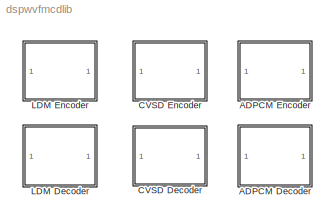
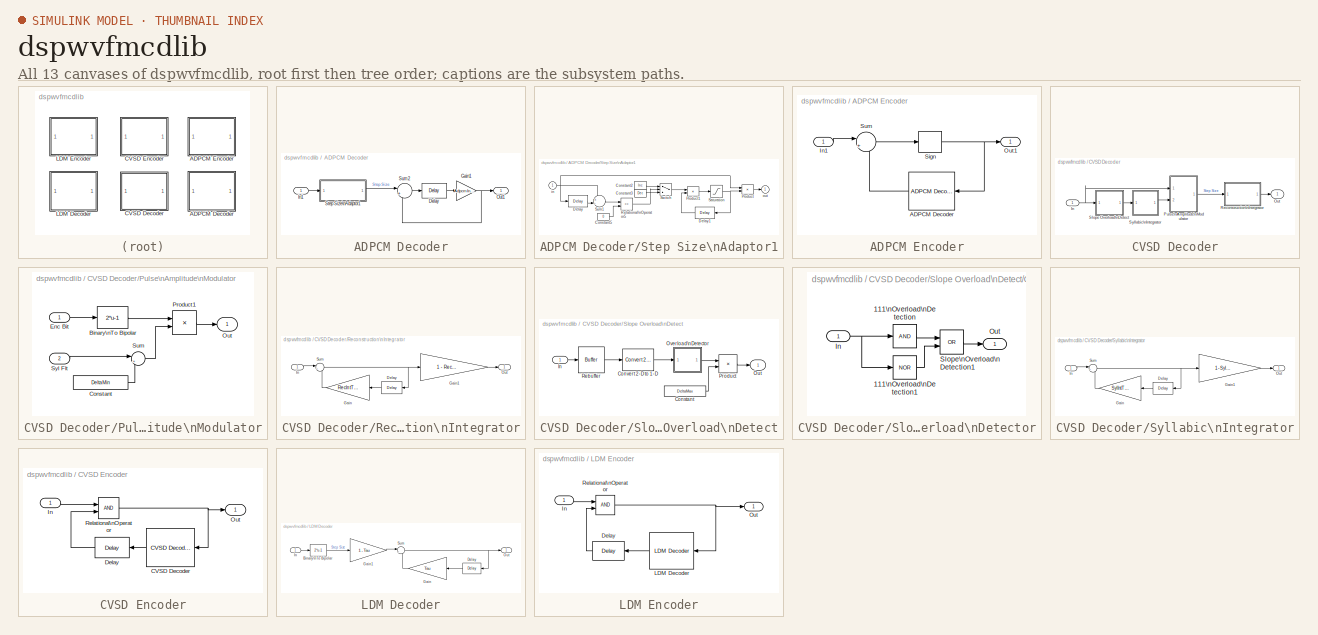
[diagram: thumbnail index - all 13 canvases of the model, root first then tree order]
MODEL dspwvfmcdlib
KIND library
BLOCK [SubSystem] ADPCM Decoder
  MaskCallbackString = |||||
  MaskDisplay = disp('ADPCM\\nDecoder')
  MaskEnableString = on,on,on,on,on,on
  MaskIconFrame = on
  MaskIconOpaque = on
  MaskIconRotate = none
  MaskIconUnits = autoscale
  MaskPromptString = Step-size attenuation|Step-size gain|Maximum step size|Minimum step size|Initial step size|Integrator time constant
  MaskStyleString = edit,edit,edit,edit,edit,edit
  MaskToolTipString = on,on,on,on,on,on
  MaskTunableValueString = on,on,on,on,on,on
  MaskType = ADPCM Decoder
  MaskValueString = .5|2|0.5|0.01|0.1|0.99
  MaskVarAliasString = ,,,,,
  MaskVariables = StepAttn=@1;StepGain=@2;StepMax=@3;StepMin=@4;StepInit=@5;AdpcmIntTau=@6;
  MaskVisibilityString = on,on,on,on,on,on
  Ports = [1, 1]
  TreatAsAtomicUnit = off
BLOCK [Reference] ADPCM Decoder/Delay  REF=dspsigops/Delay
  Ports = [1, 1]
  SourceBlock = dspsigops/Delay
  SourceType = Delay
  delay = 1
  dif_ic_for_ch = off
  dif_ic_for_dly = off
  dly_unit = Samples
  ic = 0
  ic_detail = on
  reset_popup = None
BLOCK [Gain] ADPCM Decoder/Gain1
  Gain = AdpcmIntTau
BLOCK [Inport] ADPCM Decoder/In1
BLOCK [Outport] ADPCM Decoder/Out1
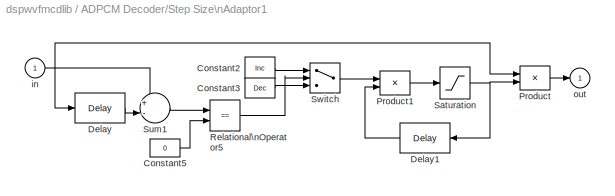
BLOCK [SubSystem] ADPCM Decoder/Step Size\nAdaptor1
  MaskCallbackString = ||||
  MaskDescription = Step-size logic
  MaskDisplay = disp('Step Size\\nAdaptation')
  MaskEnableString = on,on,on,on,on
  MaskIconFrame = on
  MaskIconOpaque = on
  MaskIconRotate = none
  MaskIconUnits = autoscale
  MaskPromptString = Step-size attenuation factor:|Step-size gain factor:|Maximum step size:|Minimum step size:|Initial step size:
  MaskStyleString = edit,edit,edit,edit,edit
  MaskToolTipString = on,on,on,on,on
  MaskTunableValueString = on,on,on,on,on
  MaskType = Step-size adaptation
  MaskValueString = StepAttn|StepGain|StepMax|StepMin|StepInit
  MaskVarAliasString = ,,,,
  MaskVariables = Dec=@1;Inc=@2;MaxStep=@3;MinStep=@4;InitStep=@5;
  MaskVisibilityString = on,on,on,on,on
  Ports = [1, 1]
  ShowPortLabels = off
  TreatAsAtomicUnit = off
BLOCK [Constant] ADPCM Decoder/Step Size\nAdaptor1/Constant2
  Value = Inc
BLOCK [Constant] ADPCM Decoder/Step Size\nAdaptor1/Constant3
  Value = Dec
BLOCK [Constant] ADPCM Decoder/Step Size\nAdaptor1/Constant5
  Value = 0
BLOCK [Reference] ADPCM Decoder/Step Size\nAdaptor1/Delay  REF=dspsigops/Delay
  Ports = [1, 1]
  SourceBlock = dspsigops/Delay
  SourceType = Delay
  delay = 1
  dif_ic_for_ch = off
  dif_ic_for_dly = off
  dly_unit = Samples
  ic = 0
  ic_detail = on
  reset_popup = None
BLOCK [Reference] ADPCM Decoder/Step Size\nAdaptor1/Delay1  REF=dspsigops/Delay
  Ports = [1, 1]
  SourceBlock = dspsigops/Delay
  SourceType = Delay
  delay = 1
  dif_ic_for_ch = off
  dif_ic_for_dly = off
  dly_unit = Samples
  ic = InitStep
  ic_detail = on
  reset_popup = None
BLOCK [Product] ADPCM Decoder/Step Size\nAdaptor1/Product
  Ports = [2, 1]
BLOCK [Product] ADPCM Decoder/Step Size\nAdaptor1/Product1
  Ports = [2, 1]
BLOCK [RelationalOperator] ADPCM Decoder/Step Size\nAdaptor1/Relational\nOperator5
  Operator = ==
BLOCK [Saturate] ADPCM Decoder/Step Size\nAdaptor1/Saturation
  LowerLimit = MinStep
  UpperLimit = MaxStep
BLOCK [Sum] ADPCM Decoder/Step Size\nAdaptor1/Sum1
  IconShape = round
  Inputs = +-|
  Ports = [2, 1]
BLOCK [Switch] ADPCM Decoder/Step Size\nAdaptor1/Switch
  Threshold = 1
BLOCK [Inport] ADPCM Decoder/Step Size\nAdaptor1/in
BLOCK [Outport] ADPCM Decoder/Step Size\nAdaptor1/out
  InitialOutput = 0
BLOCK [Sum] ADPCM Decoder/Sum2
  IconShape = round
  Inputs = |++
  Ports = [2, 1]
BLOCK [SubSystem] ADPCM Encoder
  MaskCallbackString = |||||
  MaskDisplay = disp('ADPCM\\nEncoder')
  MaskEnableString = on,on,on,on,on,on
  MaskIconFrame = on
  MaskIconOpaque = on
  MaskIconRotate = none
  MaskIconUnits = autoscale
  MaskPromptString = Step-size attenuation|Step-size gain|Maximum step size|Minimum step size|Initial step size|Integrator time constant
  MaskStyleString = edit,edit,edit,edit,edit,edit
  MaskToolTipString = on,on,on,on,on,on
  MaskTunableValueString = on,on,on,on,on,on
  MaskType = ADPCM Encoder
  MaskValueString = .5|2|0.5|0.01|0.1|0.99
  MaskVarAliasString = ,,,,,
  MaskVariables = EncStepAttn=@1;EncStepGain=@2;EncStepMax=@3;EncStepMin=@4;EncStepInit=@5;EncIntTau=@6;
  MaskVisibilityString = on,on,on,on,on,on
  Ports = [1, 1]
  TreatAsAtomicUnit = off
BLOCK [Reference] ADPCM Encoder/ADPCM Decoder  REF=dspwvfmcdlib/ADPCM Decoder
  AdpcmIntTau = EncIntTau
  Ports = [1, 1]
  SourceBlock = dspwvfmcdlib/ADPCM Decoder
  SourceType = ADPCM Decoder
  StepAttn = EncStepAttn
  StepGain = EncStepGain
  StepInit = EncStepInit
  StepMax = EncStepMax
  StepMin = EncStepMin
BLOCK [Inport] ADPCM Encoder/In1
BLOCK [Outport] ADPCM Encoder/Out1
BLOCK [Signum] ADPCM Encoder/Sign
BLOCK [Sum] ADPCM Encoder/Sum
  IconShape = round
  Inputs = |+-
  Ports = [2, 1]
BLOCK [SubSystem] CVSD Decoder
  MaskCallbackString = |||
  MaskDisplay = disp('CVSD\\nDecoder')
  MaskEnableString = on,on,on,on
  MaskIconFrame = on
  MaskIconOpaque = on
  MaskIconRotate = none
  MaskIconUnits = autoscale
  MaskPromptString = Maximum step size|Syllabic integrator time constant|Minimum step size|Reconstruction integrator time constant
  MaskStyleString = edit,edit,edit,edit
  MaskToolTipString = on,on,on,on
  MaskTunableValueString = on,on,on,on
  MaskType = CVSD Decoder
  MaskValueString = 20|0.99|0.01|0.96
  MaskVarAliasString = ,,,
  MaskVariables = DeltaMax=@1;SylIntTau=@2;DeltaMin=@3;RecIntTau=@4;
  MaskVisibilityString = on,on,on,on
  Ports = [1, 1]
  TreatAsAtomicUnit = off
BLOCK [Inport] CVSD Decoder/In
BLOCK [Outport] CVSD Decoder/Out
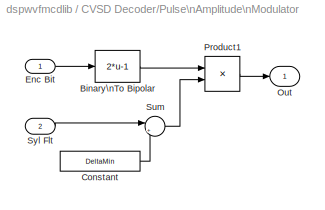
BLOCK [SubSystem] CVSD Decoder/Pulse\nAmplitude\nModulator
  Ports = [2, 1]
  TreatAsAtomicUnit = off
BLOCK [Fcn] CVSD Decoder/Pulse\nAmplitude\nModulator/Binary\nTo Bipolar
  Expr = 2*u-1
BLOCK [Constant] CVSD Decoder/Pulse\nAmplitude\nModulator/Constant
  Value = DeltaMin
BLOCK [Inport] CVSD Decoder/Pulse\nAmplitude\nModulator/Enc Bit
BLOCK [Outport] CVSD Decoder/Pulse\nAmplitude\nModulator/Out
BLOCK [Product] CVSD Decoder/Pulse\nAmplitude\nModulator/Product1
  Ports = [2, 1]
BLOCK [Sum] CVSD Decoder/Pulse\nAmplitude\nModulator/Sum
  IconShape = round
  Inputs = |++
  Ports = [2, 1]
BLOCK [Inport] CVSD Decoder/Pulse\nAmplitude\nModulator/Syl Flt
  Port = 2
BLOCK [SubSystem] CVSD Decoder/Reconstruction\nIntegrator
  MaskDisplay = disp('Reconstruction\\nIntegrator')
  MaskIconFrame = on
  MaskIconOpaque = on
  MaskIconRotate = none
  MaskIconUnits = autoscale
  Ports = [1, 1]
  TreatAsAtomicUnit = off
BLOCK [Reference] CVSD Decoder/Reconstruction\nIntegrator/Delay  REF=dspsigops/Delay
  Ports = [1, 1]
  SourceBlock = dspsigops/Delay
  SourceType = Delay
  delay = 1
  dif_ic_for_ch = off
  dif_ic_for_dly = off
  dly_unit = Samples
  ic = 0
  ic_detail = on
  reset_popup = None
BLOCK [Gain] CVSD Decoder/Reconstruction\nIntegrator/Gain
  Gain = RecIntTau
BLOCK [Gain] CVSD Decoder/Reconstruction\nIntegrator/Gain1
  Gain = 1 - RecIntTau
BLOCK [Inport] CVSD Decoder/Reconstruction\nIntegrator/In
BLOCK [Outport] CVSD Decoder/Reconstruction\nIntegrator/Out
BLOCK [Sum] CVSD Decoder/Reconstruction\nIntegrator/Sum
  IconShape = round
  Inputs = |++
  Ports = [2, 1]
BLOCK [SubSystem] CVSD Decoder/Slope Overload\nDetect
  MaskDisplay = disp('Slope\\nOverload\\nDetect')
  MaskIconFrame = on
  MaskIconOpaque = on
  MaskIconRotate = none
  MaskIconUnits = autoscale
  Ports = [1, 1]
  TreatAsAtomicUnit = off
BLOCK [Constant] CVSD Decoder/Slope Overload\nDetect/Constant
  Value = DeltaMax
BLOCK [Reference] CVSD Decoder/Slope Overload\nDetect/Convert 2-D to 1-D  REF=dspsigattribs/Convert 2-D to 1-D
  Ports = [1, 1]
  SourceBlock = dspsigattribs/Convert 2-D to 1-D
  SourceType = Convert 2-D to 1-D
BLOCK [Inport] CVSD Decoder/Slope Overload\nDetect/In
BLOCK [Outport] CVSD Decoder/Slope Overload\nDetect/Out
BLOCK [SubSystem] CVSD Decoder/Slope Overload\nDetect/Overload\nDetector
  MaskDisplay = disp('Overload\\nDetector')
  MaskIconFrame = on
  MaskIconOpaque = on
  MaskIconRotate = none
  MaskIconUnits = autoscale
  Ports = [1, 1]
  TreatAsAtomicUnit = off
BLOCK [Logic] CVSD Decoder/Slope Overload\nDetect/Overload\nDetector/111\nOverload\nDetection
  Inputs = 1
  Ports = [1, 1]
BLOCK [Logic] CVSD Decoder/Slope Overload\nDetect/Overload\nDetector/111\nOverload\nDetection1
  Inputs = 1
  Operator = NOR
  Ports = [1, 1]
BLOCK [Inport] CVSD Decoder/Slope Overload\nDetect/Overload\nDetector/In
BLOCK [Outport] CVSD Decoder/Slope Overload\nDetect/Overload\nDetector/Out
BLOCK [Logic] CVSD Decoder/Slope Overload\nDetect/Overload\nDetector/Slope\nOverload\nDetection1
  Operator = OR
  Ports = [2, 1]
BLOCK [Product] CVSD Decoder/Slope Overload\nDetect/Product
  Ports = [2, 1]
BLOCK [Reference] CVSD Decoder/Slope Overload\nDetect/Rebuffer  REF=dspbuff3/Buffer
  N = 3
  Ports = [1, 1]
  SourceBlock = dspbuff3/Buffer
  SourceType = Buffer
  V = 2
  ic = 0
BLOCK [SubSystem] CVSD Decoder/Syllabic\nIntegrator
  MaskDisplay = disp('Syllabic\\nIntegrator')
  MaskIconFrame = on
  MaskIconOpaque = on
  MaskIconRotate = none
  MaskIconUnits = autoscale
  Ports = [1, 1]
  TreatAsAtomicUnit = off
BLOCK [Reference] CVSD Decoder/Syllabic\nIntegrator/Delay  REF=dspsigops/Delay
  Ports = [1, 1]
  SourceBlock = dspsigops/Delay
  SourceType = Delay
  delay = 1
  dif_ic_for_ch = off
  dif_ic_for_dly = off
  dly_unit = Samples
  ic = 0
  ic_detail = on
  reset_popup = None
BLOCK [Gain] CVSD Decoder/Syllabic\nIntegrator/Gain
  Gain = SylIntTau
BLOCK [Gain] CVSD Decoder/Syllabic\nIntegrator/Gain1
  Gain = 1 - SylIntTau
BLOCK [Inport] CVSD Decoder/Syllabic\nIntegrator/In
BLOCK [Outport] CVSD Decoder/Syllabic\nIntegrator/Out
BLOCK [Sum] CVSD Decoder/Syllabic\nIntegrator/Sum
  IconShape = round
  Inputs = |++
  Ports = [2, 1]
BLOCK [SubSystem] CVSD Encoder
  MaskCallbackString = |||
  MaskDisplay = disp('CVSD\\nEncoder')
  MaskEnableString = on,on,on,on
  MaskIconFrame = on
  MaskIconOpaque = on
  MaskIconRotate = none
  MaskIconUnits = autoscale
  MaskPromptString = Maximum step size|Syllabic integrator time constant|Minimum step size|Reconstruction integrator time constant
  MaskStyleString = edit,edit,edit,edit
  MaskToolTipString = on,on,on,on
  MaskTunableValueString = on,on,on,on
  MaskType = CVSD Encoder
  MaskValueString = 20|0.99|0.01|0.96
  MaskVarAliasString = ,,,
  MaskVariables = EncDeltaMax=@1;EncSylIntTau=@2;EncDeltaMin=@3;EncRecIntTau=@4;
  MaskVisibilityString = on,on,on,on
  Ports = [1, 1]
  TreatAsAtomicUnit = off
BLOCK [Reference] CVSD Encoder/CVSD Decoder  REF=dspwvfmcdlib/CVSD Decoder
  DeltaMax = EncDeltaMax
  DeltaMin = EncDeltaMin
  Ports = [1, 1]
  RecIntTau = EncRecIntTau
  SourceBlock = dspwvfmcdlib/CVSD Decoder
  SourceType = CVSD Decoder
  SylIntTau = EncSylIntTau
BLOCK [Reference] CVSD Encoder/Delay  REF=dspsigops/Delay
  Ports = [1, 1]
  SourceBlock = dspsigops/Delay
  SourceType = Delay
  delay = 1
  dif_ic_for_ch = off
  dif_ic_for_dly = off
  dly_unit = Samples
  ic = 0
  ic_detail = on
  reset_popup = None
BLOCK [Inport] CVSD Encoder/In
BLOCK [Outport] CVSD Encoder/Out
BLOCK [RelationalOperator] CVSD Encoder/Relational\nOperator
BLOCK [SubSystem] LDM Decoder
  MaskDisplay = disp('LDM\\nDecoder')
  MaskEnableString = on
  MaskIconFrame = on
  MaskIconOpaque = on
  MaskIconRotate = none
  MaskIconUnits = autoscale
  MaskPromptString = Integrator time constant
  MaskStyleString = edit
  MaskToolTipString = on
  MaskTunableValueString = on
  MaskType = LDM Decoder
  MaskValueString = 0.91
  MaskVariables = Tau=@1;
  MaskVisibilityString = on
  Ports = [1, 1]
  TreatAsAtomicUnit = off
BLOCK [Fcn] LDM Decoder/Binary\nTo Bipolar
  Expr = 2*u-1
BLOCK [Reference] LDM Decoder/Delay  REF=dspsigops/Delay
  Ports = [1, 1]
  SourceBlock = dspsigops/Delay
  SourceType = Delay
  delay = 1
  dif_ic_for_ch = off
  dif_ic_for_dly = off
  dly_unit = Samples
  ic = 0
  ic_detail = on
  reset_popup = None
BLOCK [Gain] LDM Decoder/Gain
  Gain = Tau
BLOCK [Gain] LDM Decoder/Gain1
  Gain = 1 - Tau
BLOCK [Inport] LDM Decoder/In
BLOCK [Outport] LDM Decoder/Out
BLOCK [Sum] LDM Decoder/Sum
  IconShape = round
  Inputs = |++
  Ports = [2, 1]
BLOCK [SubSystem] LDM Encoder
  MaskDisplay = disp('LDM\\nEncoder')
  MaskEnableString = on
  MaskIconFrame = on
  MaskIconOpaque = on
  MaskIconRotate = none
  MaskIconUnits = autoscale
  MaskPromptString = Integrator time constant
  MaskStyleString = edit
  MaskToolTipString = on
  MaskTunableValueString = on
  MaskType = LDM Encoder
  MaskValueString = 0.91
  MaskVariables = EncTau=@1;
  MaskVisibilityString = on
  Ports = [1, 1]
  TreatAsAtomicUnit = off
BLOCK [Reference] LDM Encoder/Delay  REF=dspsigops/Delay
  Ports = [1, 1]
  SourceBlock = dspsigops/Delay
  SourceType = Delay
  delay = 1
  dif_ic_for_ch = off
  dif_ic_for_dly = off
  dly_unit = Samples
  ic = 0
  ic_detail = on
  reset_popup = None
BLOCK [Inport] LDM Encoder/In
BLOCK [Reference] LDM Encoder/LDM Decoder  REF=dspwvfmcdlib/LDM Decoder
  Ports = [1, 1]
  SourceBlock = dspwvfmcdlib/LDM Decoder
  SourceType = LDM Decoder
  Tau = EncTau
BLOCK [Outport] LDM Encoder/Out
BLOCK [RelationalOperator] LDM Encoder/Relational\nOperator
LINE ADPCM Decoder/Delay:1 -> ADPCM Decoder/Gain1:1
NET ADPCM Decoder/Gain1:1 -> ADPCM Decoder/Out1:1, ADPCM Decoder/Sum2:2
LINE ADPCM Decoder/In1:1 -> ADPCM Decoder/Step Size\nAdaptor1:1
LINE ADPCM Decoder/Step Size\nAdaptor1/Constant2:1 -> ADPCM Decoder/Step Size\nAdaptor1/Switch:1
LINE ADPCM Decoder/Step Size\nAdaptor1/Constant3:1 -> ADPCM Decoder/Step Size\nAdaptor1/Switch:3
LINE ADPCM Decoder/Step Size\nAdaptor1/Constant5:1 -> ADPCM Decoder/Step Size\nAdaptor1/Relational\nOperator5:2
LINE ADPCM Decoder/Step Size\nAdaptor1/Delay1:1 -> ADPCM Decoder/Step Size\nAdaptor1/Product1:2
LINE ADPCM Decoder/Step Size\nAdaptor1/Delay:1 -> ADPCM Decoder/Step Size\nAdaptor1/Sum1:2
LINE ADPCM Decoder/Step Size\nAdaptor1/Product1:1 -> ADPCM Decoder/Step Size\nAdaptor1/Saturation:1
LINE ADPCM Decoder/Step Size\nAdaptor1/Product:1 -> ADPCM Decoder/Step Size\nAdaptor1/out:1
LINE ADPCM Decoder/Step Size\nAdaptor1/Relational\nOperator5:1 -> ADPCM Decoder/Step Size\nAdaptor1/Switch:2
NET ADPCM Decoder/Step Size\nAdaptor1/Saturation:1 -> ADPCM Decoder/Step Size\nAdaptor1/Delay1:1, ADPCM Decoder/Step Size\nAdaptor1/Product:2
LINE ADPCM Decoder/Step Size\nAdaptor1/Sum1:1 -> ADPCM Decoder/Step Size\nAdaptor1/Relational\nOperator5:1
LINE ADPCM Decoder/Step Size\nAdaptor1/Switch:1 -> ADPCM Decoder/Step Size\nAdaptor1/Product1:1
NET ADPCM Decoder/Step Size\nAdaptor1/in:1 -> ADPCM Decoder/Step Size\nAdaptor1/Delay:1, ADPCM Decoder/Step Size\nAdaptor1/Product:1, ADPCM Decoder/Step Size\nAdaptor1/Sum1:1
LINE ADPCM Decoder/Step Size\nAdaptor1:1 -> ADPCM Decoder/Sum2:1
LINE ADPCM Decoder/Sum2:1 -> ADPCM Decoder/Delay:1
LINE ADPCM Encoder/ADPCM Decoder:1 -> ADPCM Encoder/Sum:2
LINE ADPCM Encoder/In1:1 -> ADPCM Encoder/Sum:1
NET ADPCM Encoder/Sign:1 -> ADPCM Encoder/ADPCM Decoder:1, ADPCM Encoder/Out1:1
LINE ADPCM Encoder/Sum:1 -> ADPCM Encoder/Sign:1
NET CVSD Decoder/In:1 -> CVSD Decoder/Pulse\nAmplitude\nModulator:1, CVSD Decoder/Slope Overload\nDetect:1
LINE CVSD Decoder/Pulse\nAmplitude\nModulator/Binary\nTo Bipolar:1 -> CVSD Decoder/Pulse\nAmplitude\nModulator/Product1:1
LINE CVSD Decoder/Pulse\nAmplitude\nModulator/Constant:1 -> CVSD Decoder/Pulse\nAmplitude\nModulator/Sum:2
LINE CVSD Decoder/Pulse\nAmplitude\nModulator/Enc Bit:1 -> CVSD Decoder/Pulse\nAmplitude\nModulator/Binary\nTo Bipolar:1
LINE CVSD Decoder/Pulse\nAmplitude\nModulator/Product1:1 -> CVSD Decoder/Pulse\nAmplitude\nModulator/Out:1
LINE CVSD Decoder/Pulse\nAmplitude\nModulator/Sum:1 -> CVSD Decoder/Pulse\nAmplitude\nModulator/Product1:2
LINE CVSD Decoder/Pulse\nAmplitude\nModulator/Syl Flt:1 -> CVSD Decoder/Pulse\nAmplitude\nModulator/Sum:1
LINE CVSD Decoder/Pulse\nAmplitude\nModulator:1 -> CVSD Decoder/Reconstruction\nIntegrator:1
LINE CVSD Decoder/Reconstruction\nIntegrator/Delay:1 -> CVSD Decoder/Reconstruction\nIntegrator/Gain:1
LINE CVSD Decoder/Reconstruction\nIntegrator/Gain1:1 -> CVSD Decoder/Reconstruction\nIntegrator/Out:1
LINE CVSD Decoder/Reconstruction\nIntegrator/Gain:1 -> CVSD Decoder/Reconstruction\nIntegrator/Sum:2
LINE CVSD Decoder/Reconstruction\nIntegrator/In:1 -> CVSD Decoder/Reconstruction\nIntegrator/Sum:1
NET CVSD Decoder/Reconstruction\nIntegrator/Sum:1 -> CVSD Decoder/Reconstruction\nIntegrator/Delay:1, CVSD Decoder/Reconstruction\nIntegrator/Gain1:1
LINE CVSD Decoder/Reconstruction\nIntegrator:1 -> CVSD Decoder/Out:1
LINE CVSD Decoder/Slope Overload\nDetect/Constant:1 -> CVSD Decoder/Slope Overload\nDetect/Product:2
LINE CVSD Decoder/Slope Overload\nDetect/Convert 2-D to 1-D:1 -> CVSD Decoder/Slope Overload\nDetect/Overload\nDetector:1
LINE CVSD Decoder/Slope Overload\nDetect/In:1 -> CVSD Decoder/Slope Overload\nDetect/Rebuffer:1
LINE CVSD Decoder/Slope Overload\nDetect/Overload\nDetector/111\nOverload\nDetection1:1 -> CVSD Decoder/Slope Overload\nDetect/Overload\nDetector/Slope\nOverload\nDetection1:2
LINE CVSD Decoder/Slope Overload\nDetect/Overload\nDetector/111\nOverload\nDetection:1 -> CVSD Decoder/Slope Overload\nDetect/Overload\nDetector/Slope\nOverload\nDetection1:1
NET CVSD Decoder/Slope Overload\nDetect/Overload\nDetector/In:1 -> CVSD Decoder/Slope Overload\nDetect/Overload\nDetector/111\nOverload\nDetection1:1, CVSD Decoder/Slope Overload\nDetect/Overload\nDetector/111\nOverload\nDetection:1
LINE CVSD Decoder/Slope Overload\nDetect/Overload\nDetector/Slope\nOverload\nDetection1:1 -> CVSD Decoder/Slope Overload\nDetect/Overload\nDetector/Out:1
LINE CVSD Decoder/Slope Overload\nDetect/Overload\nDetector:1 -> CVSD Decoder/Slope Overload\nDetect/Product:1
LINE CVSD Decoder/Slope Overload\nDetect/Product:1 -> CVSD Decoder/Slope Overload\nDetect/Out:1
LINE CVSD Decoder/Slope Overload\nDetect/Rebuffer:1 -> CVSD Decoder/Slope Overload\nDetect/Convert 2-D to 1-D:1
LINE CVSD Decoder/Slope Overload\nDetect:1 -> CVSD Decoder/Syllabic\nIntegrator:1
LINE CVSD Decoder/Syllabic\nIntegrator/Delay:1 -> CVSD Decoder/Syllabic\nIntegrator/Gain:1
LINE CVSD Decoder/Syllabic\nIntegrator/Gain1:1 -> CVSD Decoder/Syllabic\nIntegrator/Out:1
LINE CVSD Decoder/Syllabic\nIntegrator/Gain:1 -> CVSD Decoder/Syllabic\nIntegrator/Sum:2
LINE CVSD Decoder/Syllabic\nIntegrator/In:1 -> CVSD Decoder/Syllabic\nIntegrator/Sum:1
NET CVSD Decoder/Syllabic\nIntegrator/Sum:1 -> CVSD Decoder/Syllabic\nIntegrator/Delay:1, CVSD Decoder/Syllabic\nIntegrator/Gain1:1
LINE CVSD Decoder/Syllabic\nIntegrator:1 -> CVSD Decoder/Pulse\nAmplitude\nModulator:2
LINE CVSD Encoder/CVSD Decoder:1 -> CVSD Encoder/Delay:1
LINE CVSD Encoder/Delay:1 -> CVSD Encoder/Relational\nOperator:2
LINE CVSD Encoder/In:1 -> CVSD Encoder/Relational\nOperator:1
NET CVSD Encoder/Relational\nOperator:1 -> CVSD Encoder/CVSD Decoder:1, CVSD Encoder/Out:1
LINE LDM Decoder/Binary\nTo Bipolar:1 -> LDM Decoder/Gain1:1
LINE LDM Decoder/Delay:1 -> LDM Decoder/Gain:1
LINE LDM Decoder/Gain1:1 -> LDM Decoder/Sum:1
LINE LDM Decoder/Gain:1 -> LDM Decoder/Sum:2
LINE LDM Decoder/In:1 -> LDM Decoder/Binary\nTo Bipolar:1
NET LDM Decoder/Sum:1 -> LDM Decoder/Delay:1, LDM Decoder/Out:1
LINE LDM Encoder/Delay:1 -> LDM Encoder/Relational\nOperator:2
LINE LDM Encoder/In:1 -> LDM Encoder/Relational\nOperator:1
LINE LDM Encoder/LDM Decoder:1 -> LDM Encoder/Delay:1
NET LDM Encoder/Relational\nOperator:1 -> LDM Encoder/LDM Decoder:1, LDM Encoder/Out:1
note: NET lines group one-source signal fan-out (src -> all destinations, sorted); 1:1 wires keep LINE
